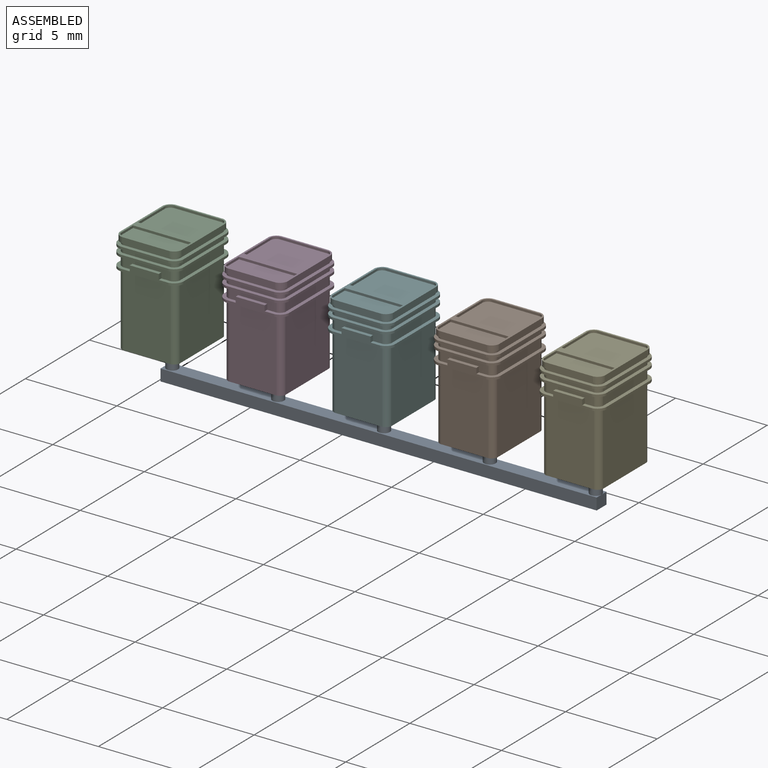
[diagram: assembled view]
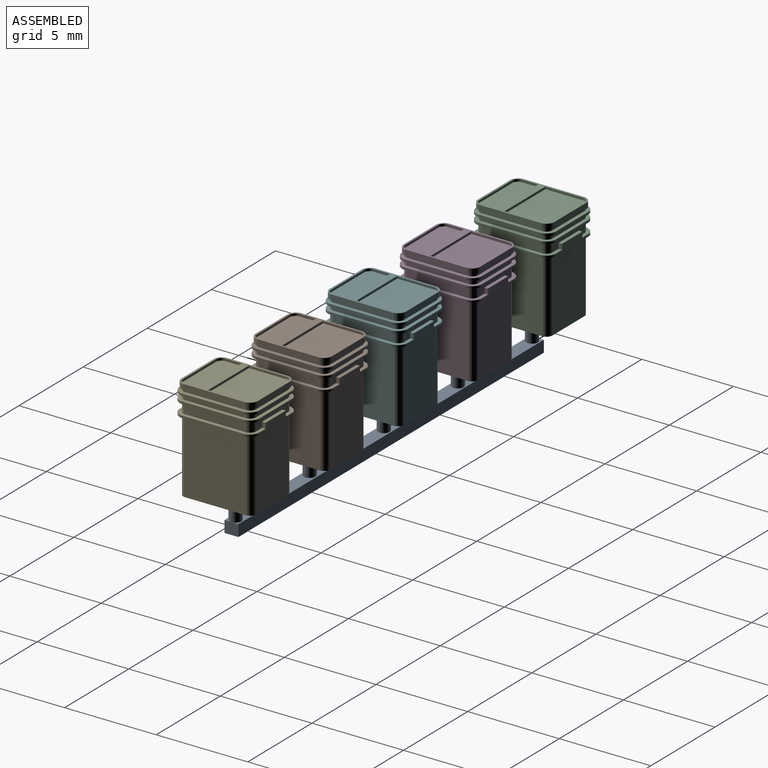
[diagram: assembled view, second angle]
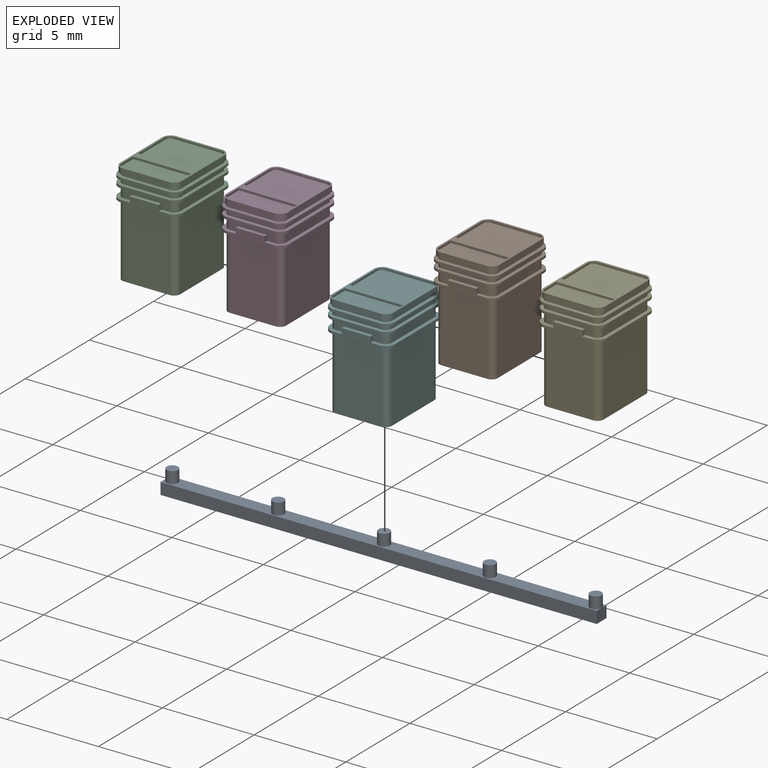
[diagram: exploded view]
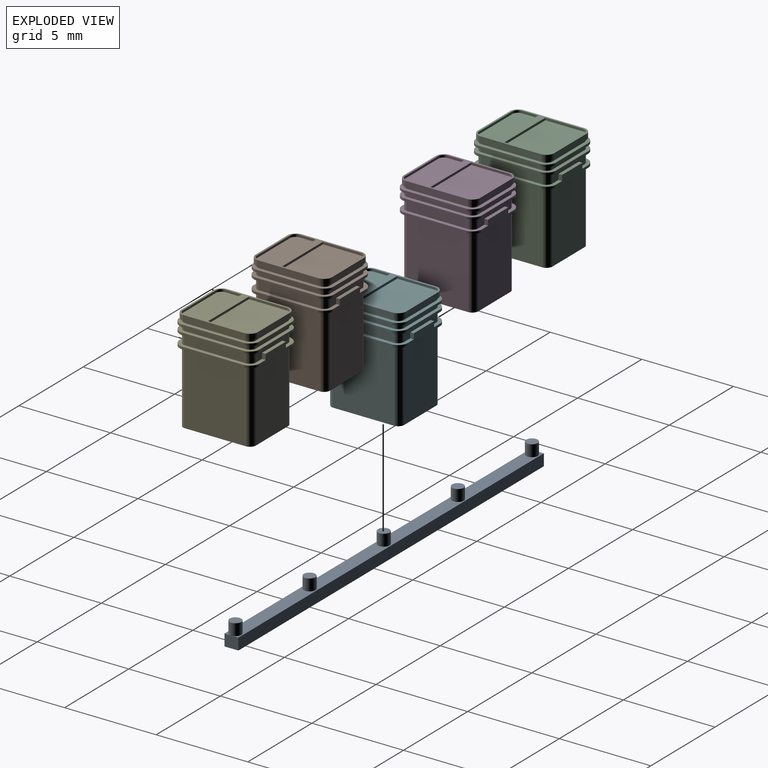
[diagram: exploded view, second angle]
ASSEMBLY  parts=6 mates=5
PART A: 16 faces, bbox 23.8x1.3x0.8 mm
  f0: plane 23.81x0.64mm, normal (0,0,-1), area 15.1mm2, adj f1,f3,f4,f5
  f1: plane 0.76x0.64mm, normal (1,0,0), area 0.5mm2, adj f0,f2,f4,f5
  f2: plane 23.81x0.64mm, normal (0,0,1), area 15.1mm2, adj f1,f3,f4,f5
  f3: plane 0.76x0.64mm, normal (-1,0,0), area 0.5mm2, adj f0,f2,f4,f5
  f4: plane 23.81x0.76mm, normal (0,-1,0), area 16.6mm2, adj f0,f1,f2,f3,f6,f8,f10,f12
  f5: plane 23.81x0.76mm, normal (0,1,0), area 18.1mm2, adj f0,f1,f2,f3
  f6: cylinder r=0.32mm len=0.64mm, axis (0,1,0), area 1.3mm2, adj f4,f7
  f7: plane 0.64x0.64mm, normal (0,-1,0), area 0.3mm2, adj f6
  f8: cylinder r=0.32mm len=0.64mm, axis (0,1,0), area 1.3mm2, adj f4,f9
  f9: plane 0.64x0.64mm, normal (0,-1,0), area 0.3mm2, adj f8
  f10: cylinder r=0.32mm len=0.64mm, axis (0,1,0), area 1.3mm2, adj f4,f11
  f11: plane 0.64x0.64mm, normal (0,-1,0), area 0.3mm2, adj f10
  f12: cylinder r=0.32mm len=0.64mm, axis (0,1,0), area 1.3mm2, adj f4,f13
  f13: plane 0.64x0.64mm, normal (0,-1,0), area 0.3mm2, adj f12
  f14: cylinder r=0.32mm len=0.64mm, axis (0,1,0), area 1.3mm2, adj f4,f15
  f15: plane 0.64x0.64mm, normal (0,-1,0), area 0.3mm2, adj f14
PART B: 112 faces, bbox 3.6x4.4x6.3 mm
  f0: plane 4.17x3.38mm, normal (0,0,1), area 2.7mm2, adj f90,f91,f92,f93,f94,f95,f96,f97
  f1: plane 4.37x0.99mm, normal (0,0,1), area 1.1mm2, adj f3,f14,f15,f16,f17,f18,f19,f20
  f2: plane 4.37x0.99mm, normal (0,0,1), area 1.1mm2, adj f3,f14,f22,f23,f24,f25,f26,f27
  f3: plane 2.56x0.57mm, normal (0,1,0), area 1mm2, adj f1,f2,f32,f33,f37,f38,f39,f43
  f4: plane 3.97x2.59mm, normal (0,-1,0), area 10.3mm2, adj f5,f11,f12,f13
  f5: cylinder r=0.35mm len=3.97mm, axis (0,0,-1), area 1.7mm2, adj f4,f6,f12,f13
  f6: plane 3.97x3.39mm, normal (1,0,0), area 13.5mm2, adj f5,f7,f12,f13
  f7: cylinder r=0.35mm len=3.97mm, axis (0,0,-1), area 1.8mm2, adj f6,f8,f12,f13
  f8: plane 3.97x2.56mm, normal (0,1,0), area 10.2mm2, adj f7,f9,f12,f13
  f9: cylinder r=0.36mm len=3.97mm, axis (0,0,-1), area 1.9mm2, adj f8,f10,f12,f13
  f10: plane 3.97x3.35mm, normal (-1,0,0), area 13.3mm2, adj f9,f11,f12,f13
  f11: cylinder r=0.35mm len=3.97mm, axis (0,0,-1), area 1.8mm2, adj f4,f10,f12,f13
  f12: plane 3.97x3.18mm, normal (0,0,-1), area 12.2mm2, adj f4,f5,f6,f7,f8,f9,f10,f11
  f13: plane 4.37x3.57mm, normal (0,0,-1), area 2.8mm2, adj f4,f5,f6,f7,f8,f9,f10,f11
  f14: plane 2.59x0.42mm, normal (0,-1,0), area 0.8mm2, adj f1,f2,f13,f15,f29,f40,f41,f42
  f15: plane 0.13x0.03mm, normal (0.08,-1,0), area 0mm2, adj f1,f13,f14,f16
  f16: cylinder r=0.54mm len=0.45mm, axis (0,0,-1), area 0.1mm2, adj f1,f13,f15,f17
  f17: plane 0.13x0.03mm, normal (1,-0.08,0), area 0mm2, adj f1,f13,f16,f18
  f18: plane 3.39x0.13mm, normal (1,0,0), area 0.4mm2, adj f1,f13,f17,f19
  f19: plane 0.13x0.03mm, normal (1,0.08,0), area 0mm2, adj f1,f13,f18,f20
  f20: cylinder r=0.55mm len=0.46mm, axis (0,0,-1), area 0.1mm2, adj f1,f13,f19,f21
  f21: plane 0.13x0.03mm, normal (0.08,1,0), area 0mm2, adj f1,f13,f20,f22
  f22: plane 2.56x0.42mm, normal (0,1,0), area 0.8mm2, adj f1,f2,f13,f21,f23,f37,f38,f39
  f23: plane 0.13x0.02mm, normal (-0.05,1,0), area 0mm2, adj f2,f13,f22,f24
  f24: cylinder r=0.56mm len=0.5mm, axis (0,0,-1), area 0.1mm2, adj f2,f13,f23,f25
  f25: plane 0.13x0.02mm, normal (-1,0.05,0), area 0mm2, adj f2,f13,f24,f26
  f26: plane 3.35x0.13mm, normal (-1,0,0), area 0.4mm2, adj f2,f13,f25,f27
  f27: plane 0.13x0.03mm, normal (-1,-0.07,0), area 0mm2, adj f2,f13,f26,f28
  f28: cylinder r=0.55mm len=0.47mm, axis (0,0,-1), area 0.1mm2, adj f2,f13,f27,f29
  f29: plane 0.13x0.03mm, normal (-0.07,-1,0), area 0mm2, adj f2,f13,f14,f28
  f30: cylinder r=0.35mm len=0.57mm, axis (0,0,-1), area 0.3mm2, adj f2,f31,f36,f43
  f31: plane 3.35x0.57mm, normal (-1,0,0), area 1.9mm2, adj f2,f30,f32,f43
  f32: cylinder r=0.36mm len=0.57mm, axis (0,0,-1), area 0.3mm2, adj f2,f3,f31,f43
  f33: cylinder r=0.35mm len=0.57mm, axis (0,0,-1), area 0.3mm2, adj f1,f3,f34,f43
  f34: plane 3.39x0.57mm, normal (1,0,0), area 1.9mm2, adj f1,f33,f35,f43
  f35: cylinder r=0.35mm len=0.57mm, axis (0,0,-1), area 0.2mm2, adj f1,f34,f36,f43
  f36: plane 2.59x0.57mm, normal (0,-1,0), area 1mm2, adj f1,f2,f30,f35,f40,f41,f42,f43
  f37: plane 0.3x0.2mm, normal (-1,0,0), area 0.1mm2, adj f2,f3,f22,f39
  f38: plane 0.3x0.2mm, normal (1,0,0), area 0.1mm2, adj f1,f3,f22,f39
  f39: plane 1.58x0.2mm, normal (0,0,1), area 0.3mm2, adj f3,f22,f37,f38
  f40: plane 0.3x0.2mm, normal (1,0,0), area 0.1mm2, adj f1,f14,f36,f42
  f41: plane 0.3x0.2mm, normal (-1,0,0), area 0.1mm2, adj f2,f14,f36,f42
  f42: plane 1.58x0.2mm, normal (0,0,1), area 0.3mm2, adj f14,f36,f40,f41
  f43: plane 4.37x3.57mm, normal (0,0,-1), area 2.8mm2, adj f3,f30,f31,f32,f33,f34,f35,f36
  f44: plane 0.13x0.03mm, normal (1,0.08,0), area 0mm2, adj f43,f45,f59,f60
  f45: cylinder r=0.55mm len=0.46mm, axis (0,0,-1), area 0.1mm2, adj f43,f44,f46,f60
  f46: plane 0.13x0.03mm, normal (0.08,1,0), area 0mm2, adj f43,f45,f47,f60
  f47: plane 2.56x0.13mm, normal (0,1,0), area 0.3mm2, adj f43,f46,f48,f60
  f48: plane 0.13x0.02mm, normal (-0.05,1,0), area 0mm2, adj f43,f47,f49,f60
  f49: cylinder r=0.56mm len=0.5mm, axis (0,0,-1), area 0.1mm2, adj f43,f48,f50,f60
  f50: plane 0.13x0.02mm, normal (-1,0.05,0), area 0mm2, adj f43,f49,f51,f60
  f51: plane 3.35x0.13mm, normal (-1,0,0), area 0.4mm2, adj f43,f50,f52,f60
  f52: plane 0.13x0.03mm, normal (-1,-0.07,0), area 0mm2, adj f43,f51,f53,f60
  f53: cylinder r=0.55mm len=0.47mm, axis (0,0,-1), area 0.1mm2, adj f43,f52,f54,f60
  f54: plane 0.13x0.03mm, normal (-0.07,-1,0), area 0mm2, adj f43,f53,f55,f60
  f55: plane 2.59x0.13mm, normal (0,-1,0), area 0.3mm2, adj f43,f54,f56,f60
  f56: plane 0.13x0.03mm, normal (0.08,-1,0), area 0mm2, adj f43,f55,f57,f60
  f57: cylinder r=0.54mm len=0.45mm, axis (0,0,-1), area 0.1mm2, adj f43,f56,f58,f60
  f58: plane 0.13x0.03mm, normal (1,-0.08,0), area 0mm2, adj f43,f57,f59,f60
  f59: plane 3.39x0.13mm, normal (1,0,0), area 0.4mm2, adj f43,f44,f58,f60
  f60: plane 4.37x3.57mm, normal (0,0,1), area 2.8mm2, adj f44,f45,f46,f47,f48,f49,f50,f51
  f61: cylinder r=0.35mm len=0.3mm, axis (0,0,-1), area 0.1mm2, adj f60,f62,f68,f69
  f62: plane 3.35x0.27mm, normal (-1,0,0), area 0.9mm2, adj f60,f61,f63,f69
  f63: cylinder r=0.36mm len=0.32mm, axis (0,0,-1), area 0.1mm2, adj f60,f62,f64,f69
  f64: plane 2.56x0.27mm, normal (0,1,0), area 0.7mm2, adj f60,f63,f65,f69
  f65: cylinder r=0.35mm len=0.29mm, axis (0,0,-1), area 0.1mm2, adj f60,f64,f66,f69
  f66: plane 3.39x0.27mm, normal (1,0,0), area 0.9mm2, adj f60,f65,f67,f69
  f67: cylinder r=0.35mm len=0.28mm, axis (0,0,-1), area 0.1mm2, adj f60,f66,f68,f69
  f68: plane 2.59x0.27mm, normal (0,-1,0), area 0.7mm2, adj f60,f61,f67,f69
  f69: plane 4.37x3.57mm, normal (0,0,-1), area 2.8mm2, adj f61,f62,f63,f64,f65,f66,f67,f68
  f70: plane 2.59x0.13mm, normal (0,1,0), area 0.3mm2, adj f69,f71,f77,f78
  f71: cylinder r=0.56mm len=0.51mm, axis (0,0,-1), area 0.1mm2, adj f69,f70,f72,f78
  f72: plane 3.37x0.13mm, normal (-1,0,0), area 0.4mm2, adj f69,f71,f73,f78
  f73: cylinder r=0.55mm len=0.49mm, axis (0,0,-1), area 0.1mm2, adj f69,f72,f74,f78
  f74: plane 2.61x0.13mm, normal (0,-1,0), area 0.3mm2, adj f69,f73,f75,f78
  f75: cylinder r=0.54mm len=0.47mm, axis (0,0,-1), area 0.1mm2, adj f69,f74,f76,f78
  f76: plane 3.42x0.13mm, normal (1,0,0), area 0.4mm2, adj f69,f75,f77,f78
  f77: cylinder r=0.55mm len=0.48mm, axis (0,0,-1), area 0.1mm2, adj f69,f70,f76,f78
  f78: plane 4.37x3.57mm, normal (0,0,1), area 2.8mm2, adj f70,f71,f72,f73,f74,f75,f76,f77
  f79: cylinder r=0.35mm len=0.3mm, axis (0,0,-1), area 0.1mm2, adj f78,f80,f86,f89
  f80: plane 3.35x0.14mm, normal (-1,0,0), area 0.5mm2, adj f78,f79,f81,f89
  f81: cylinder r=0.36mm len=0.32mm, axis (0,0,-1), area 0.1mm2, adj f78,f80,f82,f89
  f82: plane 2.56x0.14mm, normal (0,1,0), area 0.3mm2, adj f78,f81,f83,f89
  f83: cylinder r=0.35mm len=0.29mm, axis (0,0,-1), area 0.1mm2, adj f78,f82,f84,f89
  f84: plane 3.39x0.14mm, normal (1,0,0), area 0.5mm2, adj f78,f83,f85,f89
  f85: cylinder r=0.35mm len=0.28mm, axis (0,0,-1), area 0.1mm2, adj f78,f84,f86,f89
  f86: plane 2.59x0.14mm, normal (0,-1,0), area 0.3mm2, adj f78,f79,f85,f89
  f87: cylinder r=0.32mm len=0.64mm, axis (0,0,1), area 1.3mm2, adj f12,f88
  f88: plane 0.64x0.64mm, normal (0,0,-1), area 0.3mm2, adj f87
  f89: plane 4.17x3.38mm, normal (0,0,-1), area 1.4mm2, adj f79,f80,f81,f82,f83,f84,f85,f86
  f90: plane 3.36x0.3mm, normal (-1,0,0), area 1mm2, adj f0,f89,f91,f97
  f91: cylinder r=0.45mm len=0.4mm, axis (0,0,-1), area 0.2mm2, adj f0,f89,f90,f92
  f92: plane 2.6x0.3mm, normal (0,-1,0), area 0.8mm2, adj f0,f89,f91,f93
  f93: cylinder r=0.45mm len=0.38mm, axis (0,0,-1), area 0.2mm2, adj f0,f89,f92,f94
  f94: plane 3.41x0.3mm, normal (1,0,0), area 1mm2, adj f0,f89,f93,f95
  f95: cylinder r=0.45mm len=0.39mm, axis (0,0,-1), area 0.2mm2, adj f0,f89,f94,f96
  f96: plane 2.58x0.3mm, normal (0,1,0), area 0.8mm2, adj f0,f89,f95,f97
  f97: cylinder r=0.46mm len=0.42mm, axis (0,0,-1), area 0.2mm2, adj f0,f89,f90,f96
  f98: cylinder r=0.28mm len=0.28mm, axis (0,0,1), area 0.1mm2, adj f0,f99,f103,f104
  f99: plane 0.91x0.13mm, normal (-1,0,0), area 0.1mm2, adj f0,f98,f100,f104
  f100: plane 3.18x0.13mm, normal (0,-1,0), area 0.4mm2, adj f0,f99,f101,f104
  f101: plane 0.9x0.13mm, normal (1,0,0), area 0.1mm2, adj f0,f100,f102,f104
  f102: cylinder r=0.3mm len=0.3mm, axis (0,0,1), area 0.1mm2, adj f0,f101,f103,f104
  f103: plane 2.6x0.13mm, normal (0,1,0), area 0.3mm2, adj f0,f98,f102,f104
  f104: plane 3.18x1.19mm, normal (0,0,1), area 3.7mm2, adj f98,f99,f100,f101,f102,f103
  f105: plane 3.18x0.13mm, normal (0,1,0), area 0.4mm2, adj f0,f106,f110,f111
  f106: plane 2.1x0.13mm, normal (-1,0,0), area 0.3mm2, adj f0,f105,f107,f111
  f107: cylinder r=0.29mm len=0.29mm, axis (0,0,1), area 0.1mm2, adj f0,f106,f108,f111
  f108: plane 2.58x0.13mm, normal (0,-1,0), area 0.3mm2, adj f0,f107,f109,f111
  f109: cylinder r=0.31mm len=0.31mm, axis (0,0,1), area 0.1mm2, adj f0,f108,f110,f111
  f110: plane 2.07x0.13mm, normal (1,0,0), area 0.3mm2, adj f0,f105,f109,f111
  f111: plane 3.18x2.38mm, normal (0,0,1), area 7.5mm2, adj f105,f106,f107,f108,f109,f110
PART C: same geometry as B
PART D: same geometry as B
PART E: same geometry as B
PART F: same geometry as B
PLACE A rot(axis=(-1,0,0),90deg) t=(-13.66,-7.34,14.95)mm
PLACE B t=(-18.18,-8.93,16.85)mm
PLACE C t=(-35.52,-8.93,16.85)mm
PLACE D t=(-29.74,-8.93,16.85)mm
PLACE E t=(-12.4,-8.93,16.85)mm
PLACE F t=(-23.96,-8.93,16.85)mm
MATE cylindrical D.f87 <-> A.f12  axis (0,0,-1) through (-31.32,-6.96,16.22)mm
MATE cylindrical A.f6 <-> E.f87  axis (0,0,1) through (-13.98,-6.96,16.22)mm
MATE cylindrical C.f87 <-> A.f14  axis (0,0,-1) through (-37.1,-6.96,16.22)mm
MATE cylindrical B.f87 <-> A.f8  axis (0,0,-1) through (-19.76,-6.96,16.22)mm
MATE cylindrical F.f87 <-> A.f10  axis (0,0,-1) through (-25.54,-6.96,16.22)mm
